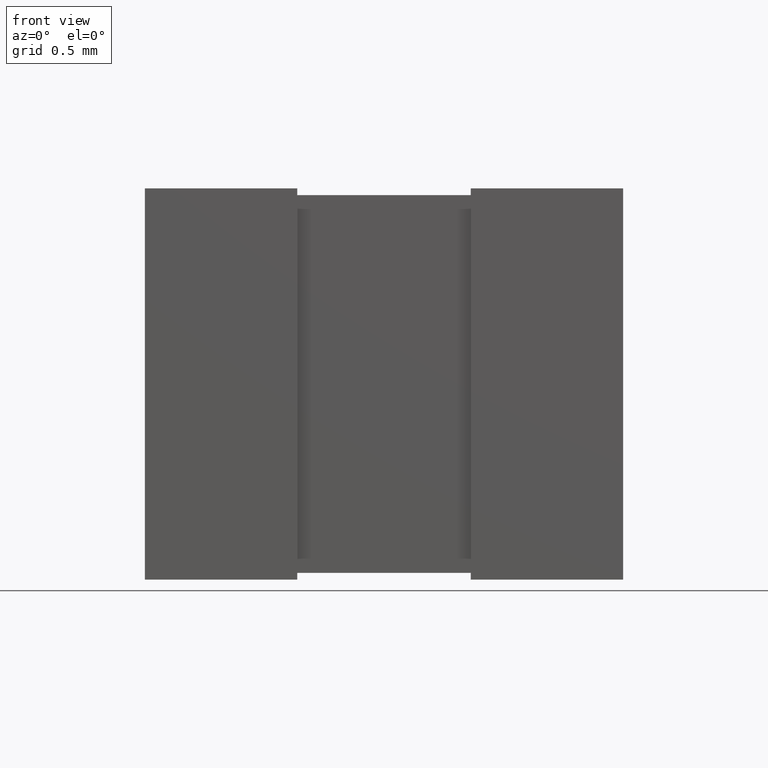
[diagram: clean part render]
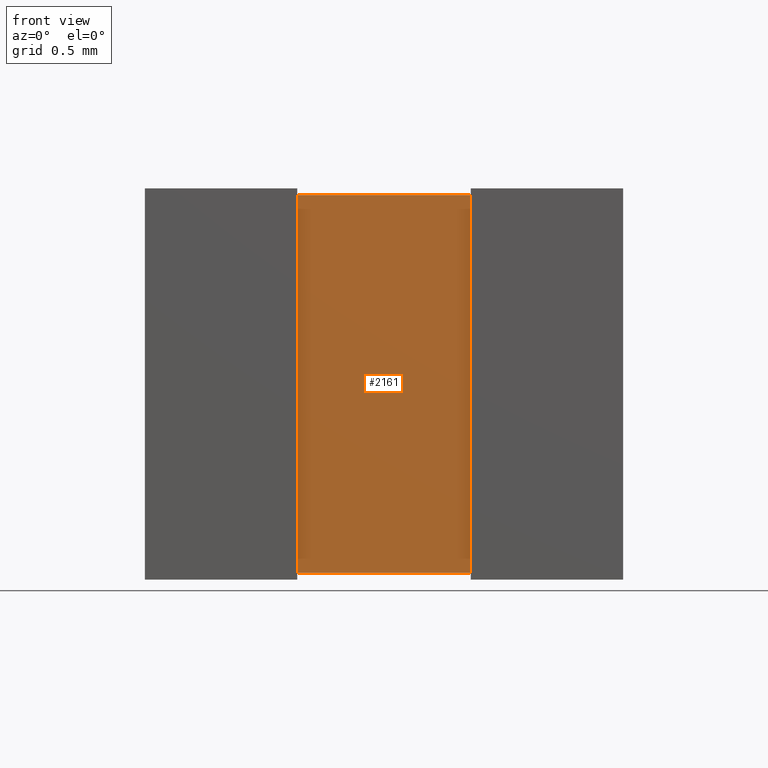
[diagram: same view with one face highlighted and labeled with its STEP entity id]
A machine part, front view. The second image highlights one B-rep face of the part: STEP entity #2161.
In plain terms, the highlighted planar face has unit normal (-0, -1, 0).
Its self-contained STEP definition (entity closure, byte-faithful):
#67 = VERTEX_POINT ( 'NONE', #342 ) ;
#114 = EDGE_CURVE ( 'NONE', #2046, #417, #2434, .T. ) ;
#206 = FACE_OUTER_BOUND ( 'NONE', #1891, .T. ) ;
#270 = DIRECTION ( 'NONE',  ( 0.0000000000000000000, 0.0000000000000000000, 1.000000000000000000 ) ) ;
#299 = AXIS2_PLACEMENT_3D ( 'NONE', #2128, #382, #1154 ) ;
#342 = CARTESIAN_POINT ( 'NONE',  ( 1.499000000000000300, 0.03103379999999959400, -0.03103380000000002800 ) ) ;
#351 = ORIENTED_EDGE ( 'NONE', *, *, #2193, .F. ) ;
#382 = DIRECTION ( 'NONE',  ( -5.421010862427523200E-016, -1.000000000000000000, 0.0000000000000000000 ) ) ;
#417 = VERTEX_POINT ( 'NONE', #682 ) ;
#654 = DIRECTION ( 'NONE',  ( 1.000000000000000000, -5.421010862427523200E-016, 0.0000000000000000000 ) ) ;
#682 = CARTESIAN_POINT ( 'NONE',  ( 1.499000000000000100, 0.03103379999999959400, -1.768966199999999900 ) ) ;
#783 = VECTOR ( 'NONE', #1567, 1000.000000000000000 ) ;
#828 = CARTESIAN_POINT ( 'NONE',  ( 1.499000000000000100, 0.03103379999999959400, -1.768966199999999900 ) ) ;
#856 = EDGE_CURVE ( 'NONE', #417, #67, #1608, .T. ) ;
#918 = ORIENTED_EDGE ( 'NONE', *, *, #114, .T. ) ;
#950 = VERTEX_POINT ( 'NONE', #2004 ) ;
#971 = CARTESIAN_POINT ( 'NONE',  ( 0.7010000000000062800, 0.03103379999999959400, -0.03103380000000002800 ) ) ;
#1086 = VECTOR ( 'NONE', #270, 1000.000000000000000 ) ;
#1140 = CARTESIAN_POINT ( 'NONE',  ( 0.6999999999999999600, 0.03103380000000002800, -1.768966199999999900 ) ) ;
#1154 = DIRECTION ( 'NONE',  ( 1.000000000000000000, -5.421010862427523200E-016, 0.0000000000000000000 ) ) ;
#1179 = VECTOR ( 'NONE', #2321, 1000.000000000000000 ) ;
#1243 = CARTESIAN_POINT ( 'NONE',  ( 0.6999999999999999600, 0.03103380000000002800, -0.03103380000000002800 ) ) ;
#1271 = ORIENTED_EDGE ( 'NONE', *, *, #856, .T. ) ;
#1543 = PLANE ( 'NONE',  #299 ) ;
#1567 = DIRECTION ( 'NONE',  ( 0.0000000000000000000, 0.0000000000000000000, -1.000000000000000000 ) ) ;
#1569 = LINE ( 'NONE', #1243, #2477 ) ;
#1591 = EDGE_CURVE ( 'NONE', #950, #2046, #2151, .T. ) ;
#1608 = LINE ( 'NONE', #828, #1086 ) ;
#1821 = CARTESIAN_POINT ( 'NONE',  ( 0.7010000000000062800, 0.03103380000000002800, -1.768966199999999900 ) ) ;
#1891 = EDGE_LOOP ( 'NONE', ( #918, #1271, #351, #2471 ) ) ;
#2004 = CARTESIAN_POINT ( 'NONE',  ( 0.7010000000000062800, 0.03103379999999959400, -0.03103380000000002800 ) ) ;
#2046 = VERTEX_POINT ( 'NONE', #1821 ) ;
#2128 = CARTESIAN_POINT ( 'NONE',  ( 0.7000000000000000700, 0.03103380000000002800, -1.800000000000000000 ) ) ;
#2151 = LINE ( 'NONE', #971, #783 ) ;
#2161 = ADVANCED_FACE ( 'NONE', ( #206 ), #1543, .T. ) ;
#2193 = EDGE_CURVE ( 'NONE', #950, #67, #1569, .T. ) ;
#2321 = DIRECTION ( 'NONE',  ( 1.000000000000000000, -5.421010862427523200E-016, 0.0000000000000000000 ) ) ;
#2434 = LINE ( 'NONE', #1140, #1179 ) ;
#2471 = ORIENTED_EDGE ( 'NONE', *, *, #1591, .T. ) ;
#2477 = VECTOR ( 'NONE', #654, 1000.000000000000000 ) ;